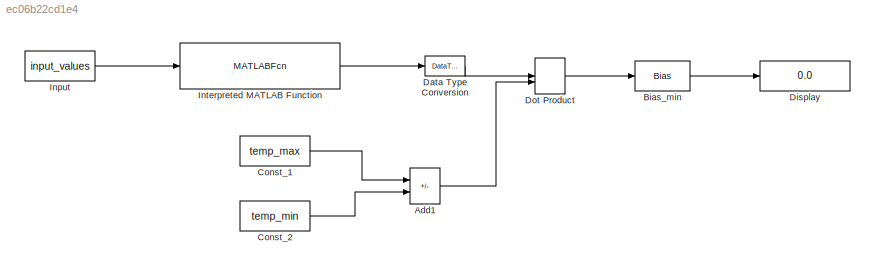
MODEL slx_ec06b22cd1e4
KIND model
CONFIG AbsTol = auto
CONFIG EnableMultiTasking = off
CONFIG FixedStep = auto
CONFIG MaxStep = auto
CONFIG MinStep = auto
CONFIG RelTol = 1e-3
CONFIG SampleTimeConstraint = Unconstrained
CONFIG SolverName = VariableStepAuto
CONFIG StartTime = 0.0
CONFIG StopTime = 10.0
BLOCK [Sum] Add1
  IconShape = rectangular
  Inputs = +-
BLOCK [Bias] Bias_min
  Bias = temp_min
  SaturateOnIntegerOverflow = off
BLOCK [Constant] Const_1
  Value = temp_max
  VectorParams1D = off
BLOCK [Constant] Const_2
  Value = temp_min
  VectorParams1D = off
BLOCK [DataTypeConversion] Data Type Conversion
  OutDataTypeStr = double
  RndMeth = Floor
  SaturateOnIntegerOverflow = off
BLOCK [Display] Display
  Decimation = 1
  Format = long
BLOCK [DotProduct] Dot Product
  OutDataTypeStr = Inherit: Inherit via internal rule
BLOCK [Constant] Input
  Value = input_values
  VectorParams1D = off
BLOCK [MATLABFcn] Interpreted MATLAB Function
  MATLABFcn = inf_tfl_mat(input_values)
  Output1D = off
  OutputDimensions = 1
  OutputSignalType = real
LINE Add1:1 -> Dot Product:2
LINE Bias_min:1 -> Display:1
LINE Const_1:1 -> Add1:1
LINE Const_2:1 -> Add1:2
LINE Data Type Conversion:1 -> Dot Product:1
LINE Dot Product:1 -> Bias_min:1
LINE Input:1 -> Interpreted MATLAB Function:1
LINE Interpreted MATLAB Function:1 -> Data Type Conversion:1
